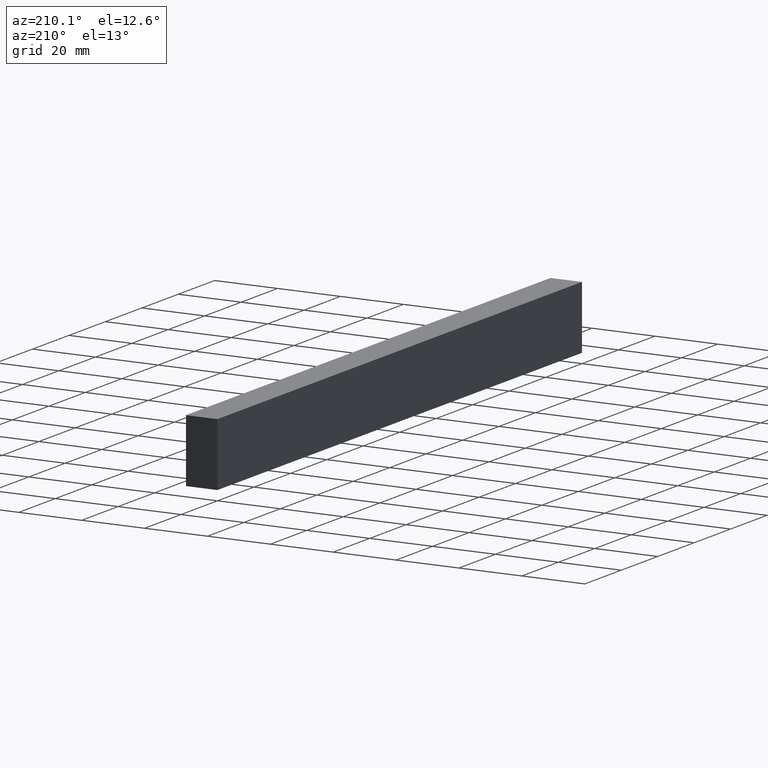
[diagram: clean part render]
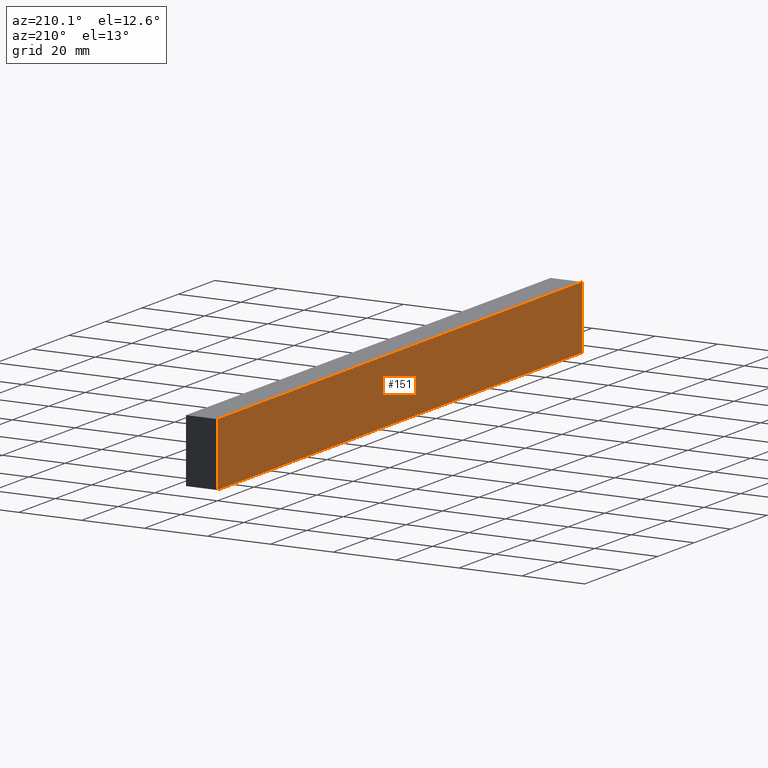
[diagram: same view with one face highlighted and labeled with its STEP entity id]
A machine part, auxiliary view. The second image highlights one B-rep face of the part: STEP entity #151.
In plain terms, the highlighted face is a freeform B-spline surface patch.
Its self-contained STEP definition (entity closure, byte-faithful):
#58=CARTESIAN_POINT('',(0.0,0.0,20.0));
#59=VERTEX_POINT('',#58);
#65=CARTESIAN_POINT('',(0.0,0.0,0.0));
#66=VERTEX_POINT('',#65);
#67=CARTESIAN_POINT('',(0.0,0.0,20.0));
#68=CARTESIAN_POINT('',(0.0,0.0,0.0));
#69=QUASI_UNIFORM_CURVE('',1,(#67,#68),.UNSPECIFIED.,.F.,.U.);
#70=EDGE_CURVE('',#59,#66,#69,.T.);
#94=CARTESIAN_POINT('',(0.0,200.0,0.0));
#95=VERTEX_POINT('',#94);
#101=CARTESIAN_POINT('',(0.0,200.0,20.0));
#102=VERTEX_POINT('',#101);
#103=CARTESIAN_POINT('',(0.0,200.0,20.0));
#104=CARTESIAN_POINT('',(0.0,200.0,0.0));
#105=QUASI_UNIFORM_CURVE('',1,(#103,#104),.UNSPECIFIED.,.F.,.U.);
#106=EDGE_CURVE('',#102,#95,#105,.T.);
#122=CARTESIAN_POINT('',(0.0,200.0,0.0));
#123=CARTESIAN_POINT('',(0.0,0.0,0.0));
#124=QUASI_UNIFORM_CURVE('',1,(#122,#123),.UNSPECIFIED.,.F.,.U.);
#125=EDGE_CURVE('',#95,#66,#124,.T.);
#136=CARTESIAN_POINT('',(0.0,-9.989999612361194,-0.998999961236120));
#137=CARTESIAN_POINT('',(0.0,-9.989999612361194,20.999000497677919));
#138=CARTESIAN_POINT('',(0.0,209.990004976779200,-0.998999961236120));
#139=CARTESIAN_POINT('',(0.0,209.990004976779200,20.999000497677919));
#140=B_SPLINE_SURFACE_WITH_KNOTS('',1,1,((#136,#138),(#137,#139)),.UNSPECIFIED.,.F.,.F.,.U.,(2,2),(2,2),(0.0,21.998000458914039),(0.0,219.980004589140410),.UNSPECIFIED.);
#141=ORIENTED_EDGE('',*,*,#70,.F.);
#142=CARTESIAN_POINT('',(0.0,200.0,20.0));
#143=CARTESIAN_POINT('',(0.0,0.0,20.0));
#144=QUASI_UNIFORM_CURVE('',1,(#142,#143),.UNSPECIFIED.,.F.,.U.);
#145=EDGE_CURVE('',#102,#59,#144,.T.);
#146=ORIENTED_EDGE('',*,*,#145,.F.);
#147=ORIENTED_EDGE('',*,*,#106,.T.);
#148=ORIENTED_EDGE('',*,*,#125,.T.);
#149=EDGE_LOOP('',(#141,#146,#147,#148));
#150=FACE_OUTER_BOUND('',#149,.T.);
#151=ADVANCED_FACE('',(#150),#140,.T.);